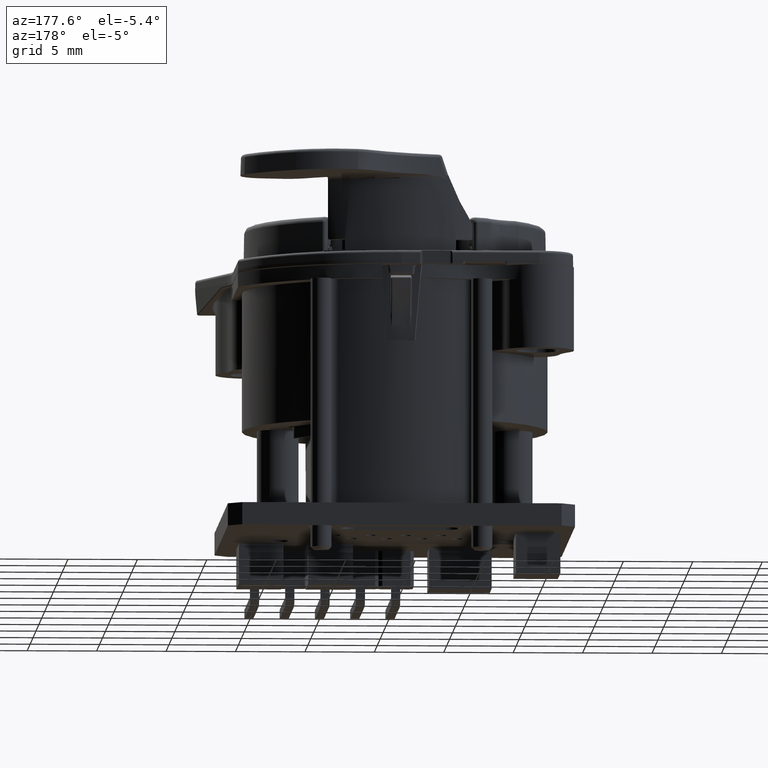
[diagram: clean part render]
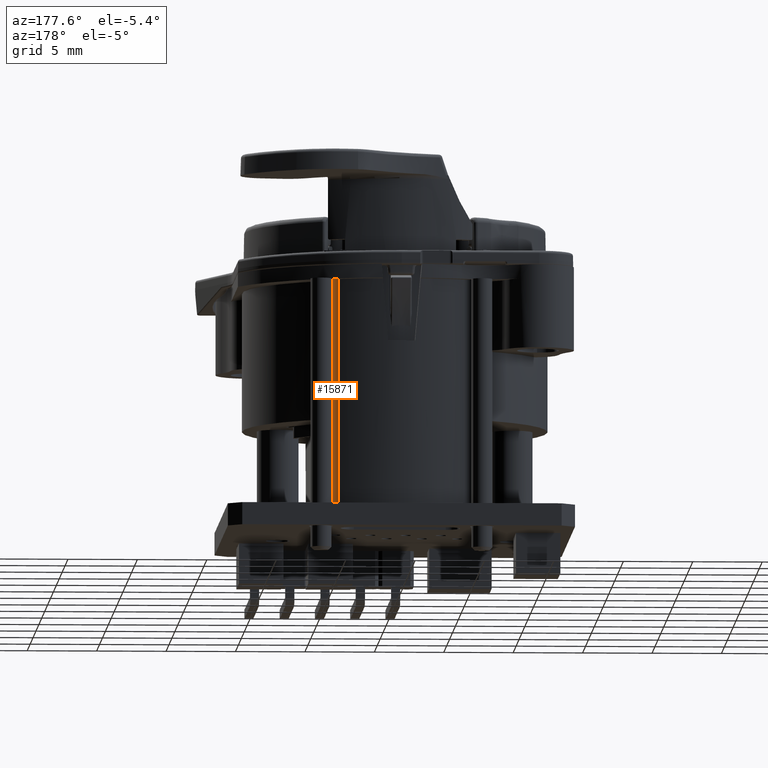
[diagram: same view with one face highlighted and labeled with its STEP entity id]
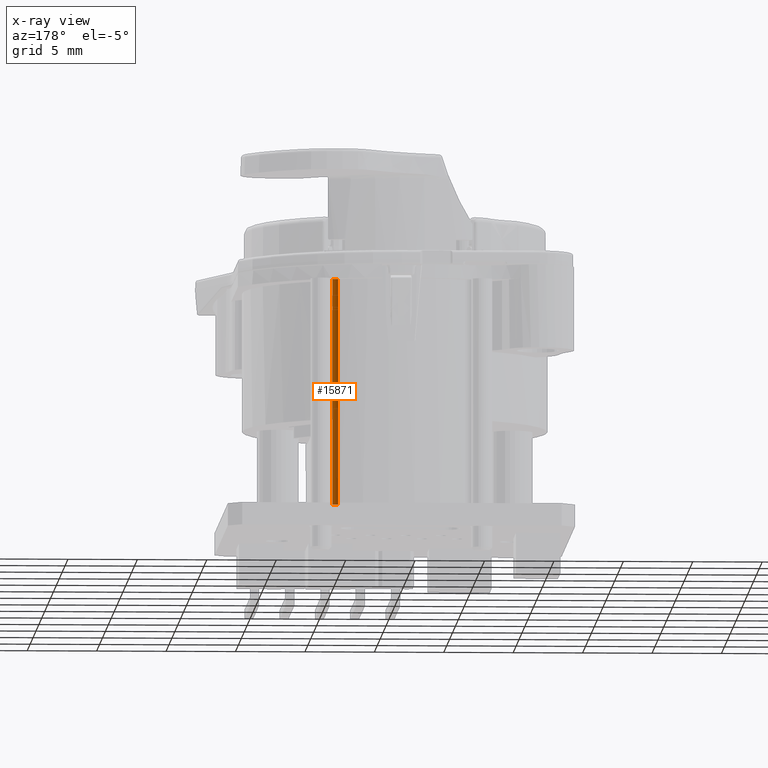
[diagram: x-ray of the same camera — body ghosted, the highlighted face saturated]
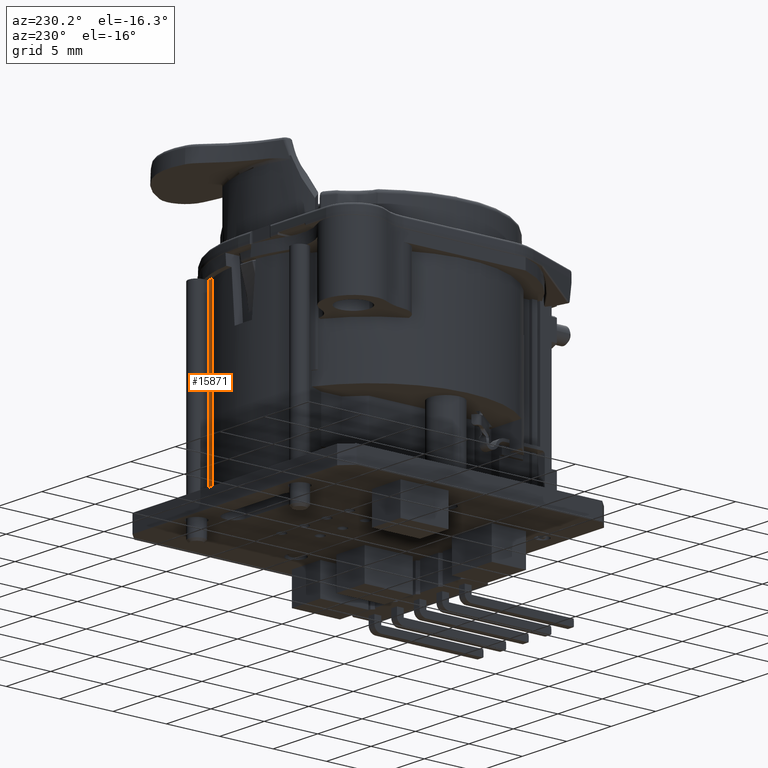
[diagram: same view with one face highlighted and labeled with its STEP entity id]
A machine part, auxiliary view. The second image highlights one B-rep face of the part: STEP entity #15871.
The next image is the same camera in x-ray: the body ghosted, the highlighted face saturated — about 0% of this face is hidden behind the body in this view.
A second angle (auxiliary view) of the same face is appended — the face is thin or edge-on in the first view.
In plain terms, the highlighted cylindrical surface (edge-blend (fillet) strip) has radius 0.5 mm, axis along (0, 0, -1).
Its self-contained STEP definition (entity closure, byte-faithful):
#5675=CARTESIAN_POINT('',(4.940776570068E0,1.111382293792E1,-2.100073187168E1));
#5676=CARTESIAN_POINT('',(4.939050642197E0,1.111303808704E1,-2.100056922306E1));
#5677=CARTESIAN_POINT('',(4.935587624046E0,1.111148699236E1,-2.100029821293E1));
#5678=CARTESIAN_POINT('',(4.930358809848E0,1.110921620136E1,-2.100005423882E1));
#5679=CARTESIAN_POINT('',(4.926853230267E0,1.110774098913E1,-2.1E1));
#5680=CARTESIAN_POINT('',(4.925095063050E0,1.110701294716E1,-2.1E1));
#5699=DIRECTION('',(0.E0,0.E0,-1.E0));
#5700=VECTOR('',#5699,1.630073187168E1);
#5701=CARTESIAN_POINT('',(4.940776570068E0,1.111382293792E1,-4.7E0));
#5702=LINE('',#5701,#5700);
#5703=CARTESIAN_POINT('',(4.733801182735E0,1.156897257160E1,-4.7E0));
#5704=DIRECTION('',(0.E0,0.E0,-1.E0));
#5705=DIRECTION('',(4.139507746662E-1,-9.102992673584E-1,0.E0));
#5706=AXIS2_PLACEMENT_3D('',#5703,#5704,#5705);
#5708=DIRECTION('',(0.E0,0.E0,-1.E0));
#5709=VECTOR('',#5708,1.63E1);
#5710=CARTESIAN_POINT('',(4.544449135425E0,1.110621366873E1,-4.7E0));
#5711=LINE('',#5710,#5709);
#5712=CARTESIAN_POINT('',(4.733801182735E0,1.156897257160E1,-2.1E1));
#5713=DIRECTION('',(0.E0,0.E0,1.E0));
#5714=DIRECTION('',(-3.787040946188E-1,-9.255178057277E-1,0.E0));
#5715=AXIS2_PLACEMENT_3D('',#5712,#5713,#5714);
#7200=CARTESIAN_POINT('',(4.940776570068E0,1.111382293792E1,-4.7E0));
#7201=CARTESIAN_POINT('',(4.544449135425E0,1.110621366873E1,-4.7E0));
#7202=VERTEX_POINT('',#7200);
#7203=VERTEX_POINT('',#7201);
#7204=CARTESIAN_POINT('',(4.544449135425E0,1.110621366873E1,-2.1E1));
#7205=VERTEX_POINT('',#7204);
#7222=VERTEX_POINT('',#5675);
#7223=VERTEX_POINT('',#5680);
#15859=CARTESIAN_POINT('',(4.733801182735E0,1.156897257160E1,
-4.641443000941E0));
#15860=DIRECTION('',(0.E0,0.E0,-1.E0));
#15861=DIRECTION('',(4.139507746662E-1,-9.102992673584E-1,0.E0));
#15862=AXIS2_PLACEMENT_3D('',#15859,#15860,#15861);
#15863=CYLINDRICAL_SURFACE('',#15862,5.E-1);
#15864=ORIENTED_EDGE('',*,*,#15838,.F.);
#15865=ORIENTED_EDGE('',*,*,#15851,.F.);
#15866=ORIENTED_EDGE('',*,*,#13335,.T.);
#15867=ORIENTED_EDGE('',*,*,#15686,.T.);
#15868=ORIENTED_EDGE('',*,*,#8589,.T.);
#15869=EDGE_LOOP('',(#15864,#15865,#15866,#15867,#15868));
#15870=FACE_OUTER_BOUND('',#15869,.F.);
#15871=ADVANCED_FACE('',(#15870),#15863,.F.);
#5681=B_SPLINE_CURVE_WITH_KNOTS('',3,(#5675,#5676,#5677,#5678,#5679,#5680),
.UNSPECIFIED.,.F.,.F.,(4,1,1,4),(0.E0,3.333333333333E-1,6.666666666667E-1,1.E0),
.UNSPECIFIED.);
#5707=CIRCLE('',#5706,5.E-1);
#5716=CIRCLE('',#5715,5.E-1);
#8589=EDGE_CURVE('',#7205,#7223,#5716,.T.);
#13335=EDGE_CURVE('',#7202,#7203,#5707,.T.);
#15686=EDGE_CURVE('',#7203,#7205,#5711,.T.);
#15838=EDGE_CURVE('',#7222,#7223,#5681,.T.);
#15851=EDGE_CURVE('',#7202,#7222,#5702,.T.);